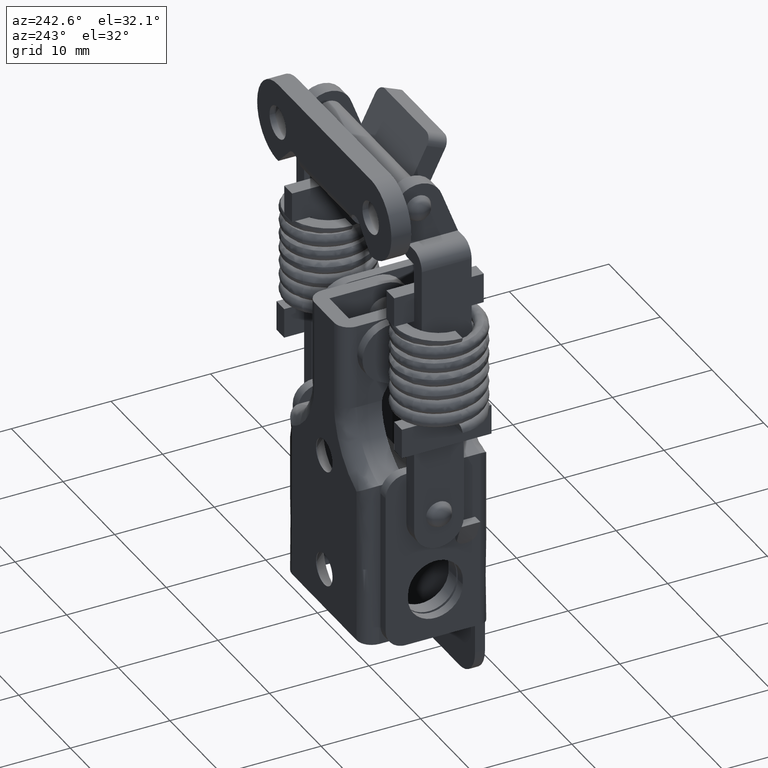
[diagram: clean part render]
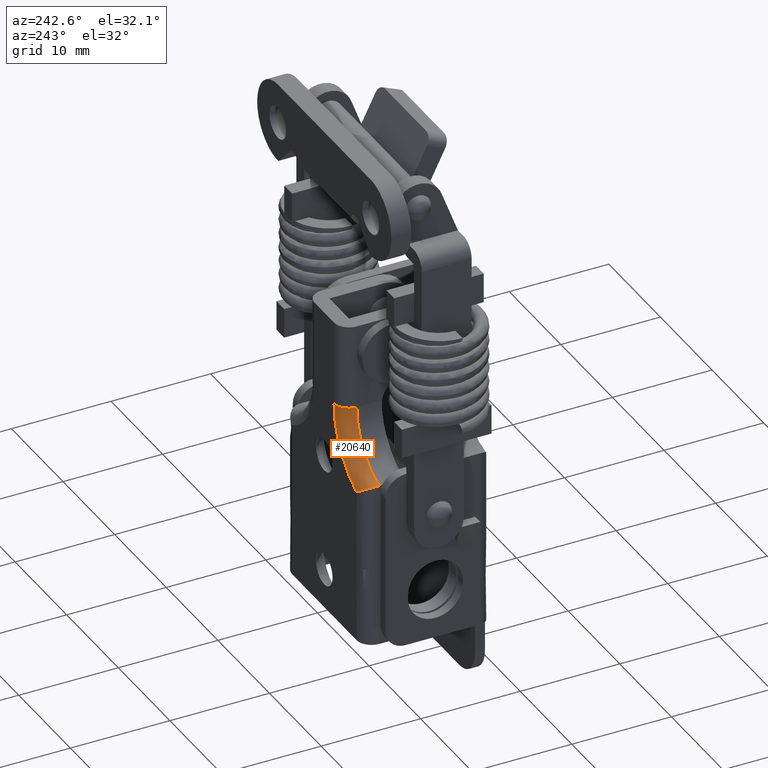
[diagram: same view with one face highlighted and labeled with its STEP entity id]
A machine part, auxiliary view. The second image highlights one B-rep face of the part: STEP entity #20640.
In plain terms, the highlighted face is a freeform B-spline surface patch.
Its self-contained STEP definition (entity closure, byte-faithful):
#20524=CARTESIAN_POINT('',(2.999999999999890,7.750000000000000,-29.343586227651500));
#20525=VERTEX_POINT('',#20524);
#20531=CARTESIAN_POINT('',(4.499999999999915,6.250000000000000,-30.370043667983349));
#20532=VERTEX_POINT('',#20531);
#20533=CARTESIAN_POINT('',(2.999999999999890,7.750000000000000,-29.343586227651500));
#20534=CARTESIAN_POINT('',(3.109832331703296,7.750000000000005,-29.343586227651510));
#20535=CARTESIAN_POINT('',(3.216972789842140,7.738086982055180,-29.352472396399719));
#20536=CARTESIAN_POINT('',(3.347789126280134,7.709369804829165,-29.373755256767161));
#20537=CARTESIAN_POINT('',(3.373795179625232,7.702926828664310,-29.378525707640211));
#20538=CARTESIAN_POINT('',(3.425492501735508,7.688636624283715,-29.389090700057022));
#20539=CARTESIAN_POINT('',(3.451193857587785,7.680779410015279,-29.394892518606071));
#20540=CARTESIAN_POINT('',(3.526758561076323,7.655470699562053,-29.413548816574711));
#20541=CARTESIAN_POINT('',(3.575461733762858,7.636192874022566,-29.427720470303289));
#20542=CARTESIAN_POINT('',(3.669779533610390,7.593161296111870,-29.459215107870818));
#20543=CARTESIAN_POINT('',(3.715393114711446,7.569406060936868,-29.476539204394090));
#20544=CARTESIAN_POINT('',(3.803665390151862,7.517573115400263,-29.514147278528199));
#20545=CARTESIAN_POINT('',(3.846307669900437,7.489463158026338,-29.534452940394161));
#20546=CARTESIAN_POINT('',(3.967430318035352,7.400695854122253,-29.598217208970169));
#20547=CARTESIAN_POINT('',(4.040164507221940,7.335109584640576,-29.644881303524262));
#20548=CARTESIAN_POINT('',(4.138465095238398,7.227879583647419,-29.720175039937502));
#20549=CARTESIAN_POINT('',(4.169277710277545,7.190769283200634,-29.746078736456859));
#20550=CARTESIAN_POINT('',(4.226468990735810,7.114887867141865,-29.798703668353511));
#20551=CARTESIAN_POINT('',(4.279478444096362,7.037074519701957,-29.852337037318751));
#20552=CARTESIAN_POINT('',(4.324530309555271,6.955535995165876,-29.907817951099940));
#20553=CARTESIAN_POINT('',(4.365682282860919,6.872152299429225,-29.964175821196999));
#20554=CARTESIAN_POINT('',(4.384369732190746,6.829358339783882,-29.992912379559382));
#20555=CARTESIAN_POINT('',(4.433928442325682,6.699879747735075,-30.079275119169630));
#20556=CARTESIAN_POINT('',(4.458496867149477,6.612005695654675,-30.137124573866028));
#20557=CARTESIAN_POINT('',(4.483276409753700,6.477939467975166,-30.224230042831760));
#20558=CARTESIAN_POINT('',(4.489510189005587,6.432872923748342,-30.253321793074409));
#20559=CARTESIAN_POINT('',(4.495782360451129,6.364699204491551,-30.297045633235349));
#20560=CARTESIAN_POINT('',(4.497359206983348,6.341878866303258,-30.311634689390399));
#20561=CARTESIAN_POINT('',(4.499468662339277,6.296044016695246,-30.340842808695641));
#20562=CARTESIAN_POINT('',(4.499999999999905,6.272825239990551,-30.355586510111909));
#20563=CARTESIAN_POINT('',(4.499999999999905,6.249999999999999,-30.370043667983349));
#20564=B_SPLINE_CURVE_WITH_KNOTS('',3,(#20533,#20534,#20535,#20536,#20537,#20538,#20539,#20540,#20541,#20542,#20543,#20544,#20545,#20546,#20547,#20548,#20549,#20550,#20551,#20552,#20553,#20554,#20555,#20556,#20557,#20558,#20559,#20560,#20561,#20562,#20563),.UNSPECIFIED.,.F.,.U.,(4,2,2,2,2,2,2,2,2,1,2,2,2,2,2,4),(0.0,0.124999999999999,0.156249999999999,0.187499999999999,0.249999999999998,0.312499999999998,0.374999999999997,0.499999999999995,0.562499999999996,0.624999999999997,0.687499999999998,0.749999999999998,0.874999999999999,0.937500000000000,0.968750000000000,1.0),.UNSPECIFIED.);
#20565=EDGE_CURVE('',#20525,#20532,#20564,.T.);
#20575=CARTESIAN_POINT('',(2.895694265564771,8.096448526686730,-29.440063477545984));
#20576=CARTESIAN_POINT('',(2.895694265564770,3.103721728839593,-28.260354021669247));
#20577=CARTESIAN_POINT('',(2.895694265564771,3.407046930957019,-23.139120859628473));
#20578=CARTESIAN_POINT('',(4.616305799931725,8.124028407033567,-29.323340832827732));
#20579=CARTESIAN_POINT('',(4.616305799931723,3.229409024772698,-28.166812746680407));
#20580=CARTESIAN_POINT('',(4.616305799931724,3.526773866376355,-23.146212158879234));
#20581=CARTESIAN_POINT('',(4.496369043305702,7.728367714046892,-30.997842749285851));
#20582=CARTESIAN_POINT('',(4.496369043305702,1.426300309900452,-29.508754960334549));
#20583=CARTESIAN_POINT('',(4.496369043305701,1.809172424982861,-23.044480449370379));
#20591=(BOUNDED_SURFACE()B_SPLINE_SURFACE(2,2,((#20575,#20578,#20581),(#20576,#20579,#20582),(#20577,#20580,#20583)),.UNSPECIFIED.,.F.,.F.,.U.)B_SPLINE_SURFACE_WITH_KNOTS((3,3),(3,3),(0.0,11.231050585824800),(0.0,2.733561038744552),.UNSPECIFIED.)GEOMETRIC_REPRESENTATION_ITEM()RATIONAL_B_SPLINE_SURFACE(((0.848038681048937,0.556504130069466,0.848038681048937),(0.647952417081573,0.425202534097122,0.647952417081573),(0.844829564350655,0.554398227666218,0.844829564350655)))REPRESENTATION_ITEM('')SURFACE());
#20592=CARTESIAN_POINT('',(2.999999999999890,3.400000000000000,-23.500000000000000));
#20593=VERTEX_POINT('',#20592);
#20594=CARTESIAN_POINT('',(4.499999999999915,1.899999999999865,-23.500000000000000));
#20595=VERTEX_POINT('',#20594);
#20596=CARTESIAN_POINT('',(2.999999999999890,3.400000000000000,-23.500000000000000));
#20597=CARTESIAN_POINT('',(3.621320343559551,3.399999999999865,-23.500000000000004));
#20598=CARTESIAN_POINT('',(4.060660171779728,2.960660171779695,-23.500000000000000));
#20599=CARTESIAN_POINT('',(4.499999999999916,2.521320343559515,-23.500000000000004));
#20600=CARTESIAN_POINT('',(4.499999999999916,1.899999999999865,-23.500000000000000));
#20608=(BOUNDED_CURVE()B_SPLINE_CURVE(2,(#20596,#20597,#20598,#20599,#20600),.UNSPECIFIED.,.F.,.U.)B_SPLINE_CURVE_WITH_KNOTS((3,2,3),(0.0,0.500000000000000,1.0),.UNSPECIFIED.)CURVE()GEOMETRIC_REPRESENTATION_ITEM()RATIONAL_B_SPLINE_CURVE((1.0,0.923879532511288,1.0,0.923879532511288,1.0))REPRESENTATION_ITEM(''));
#20609=EDGE_CURVE('',#20593,#20595,#20608,.T.);
#20610=ORIENTED_EDGE('',*,*,#20609,.T.);
#20611=CARTESIAN_POINT('',(4.499999999999915,6.250000000000000,-30.370043667983349));
#20612=CARTESIAN_POINT('',(4.499999999999915,1.899999999999999,-28.312196486329412));
#20613=CARTESIAN_POINT('',(4.499999999999915,1.899999999999865,-23.500000000000000));
#20621=(BOUNDED_CURVE()B_SPLINE_CURVE(2,(#20611,#20612,#20613),.UNSPECIFIED.,.F.,.U.)CURVE()GEOMETRIC_REPRESENTATION_ITEM()QUASI_UNIFORM_CURVE()RATIONAL_B_SPLINE_CURVE((1.0,0.844876197719931,1.0))REPRESENTATION_ITEM(''));
#20622=EDGE_CURVE('',#20532,#20595,#20621,.T.);
#20623=ORIENTED_EDGE('',*,*,#20622,.F.);
#20624=ORIENTED_EDGE('',*,*,#20565,.F.);
#20625=CARTESIAN_POINT('',(2.999999999999890,3.400000000000000,-23.500000000000000));
#20626=CARTESIAN_POINT('',(2.999999999999890,3.399999999999999,-28.040875922124172));
#20627=CARTESIAN_POINT('',(2.999999999999890,7.750000000000000,-29.343586227651500));
#20635=(BOUNDED_CURVE()B_SPLINE_CURVE(2,(#20625,#20626,#20627),.UNSPECIFIED.,.F.,.U.)CURVE()GEOMETRIC_REPRESENTATION_ITEM()QUASI_UNIFORM_CURVE()RATIONAL_B_SPLINE_CURVE((1.0,0.802148753630412,1.0))REPRESENTATION_ITEM(''));
#20636=EDGE_CURVE('',#20593,#20525,#20635,.T.);
#20637=ORIENTED_EDGE('',*,*,#20636,.F.);
#20638=EDGE_LOOP('',(#20610,#20623,#20624,#20637));
#20639=FACE_OUTER_BOUND('',#20638,.T.);
#20640=ADVANCED_FACE('',(#20639),#20591,.T.);